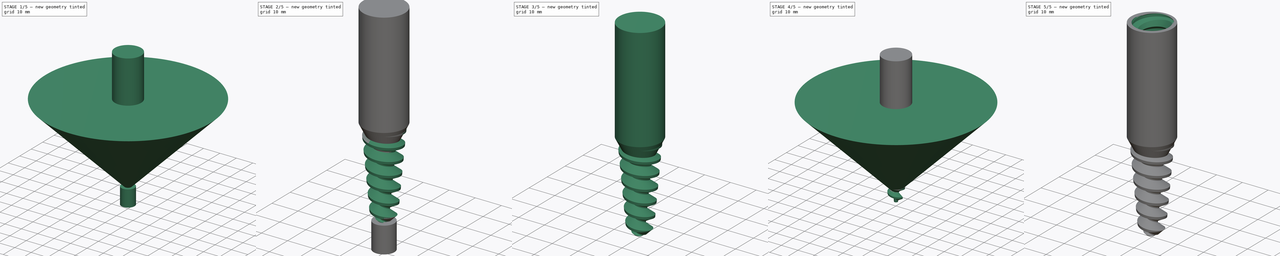
[diagram: build sequence overview — one tinted view per stage of 5, left to right]
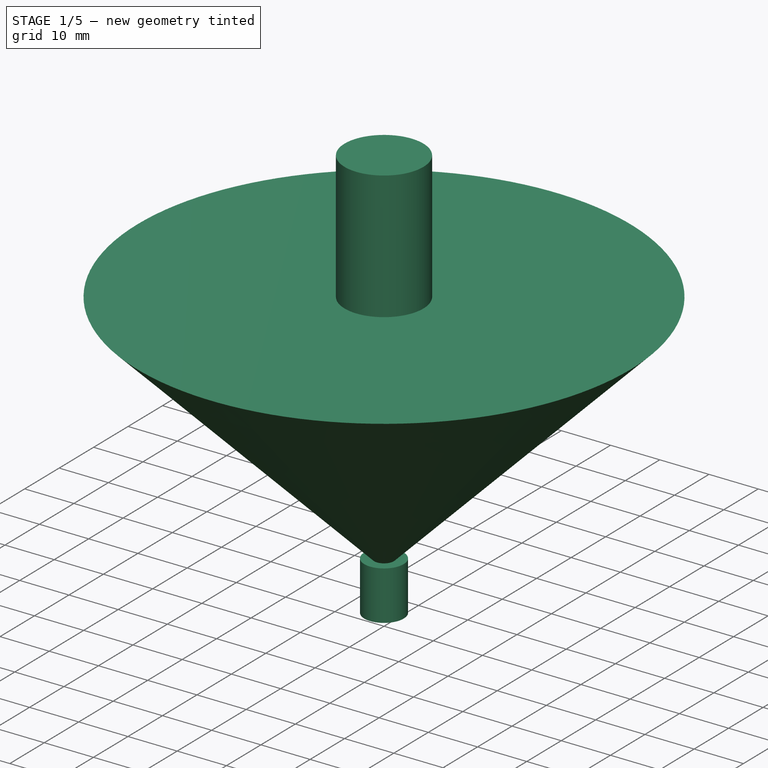
[diagram: stage 1 of 5 — iso view after this stage's code; geometry added in this stage tinted green]
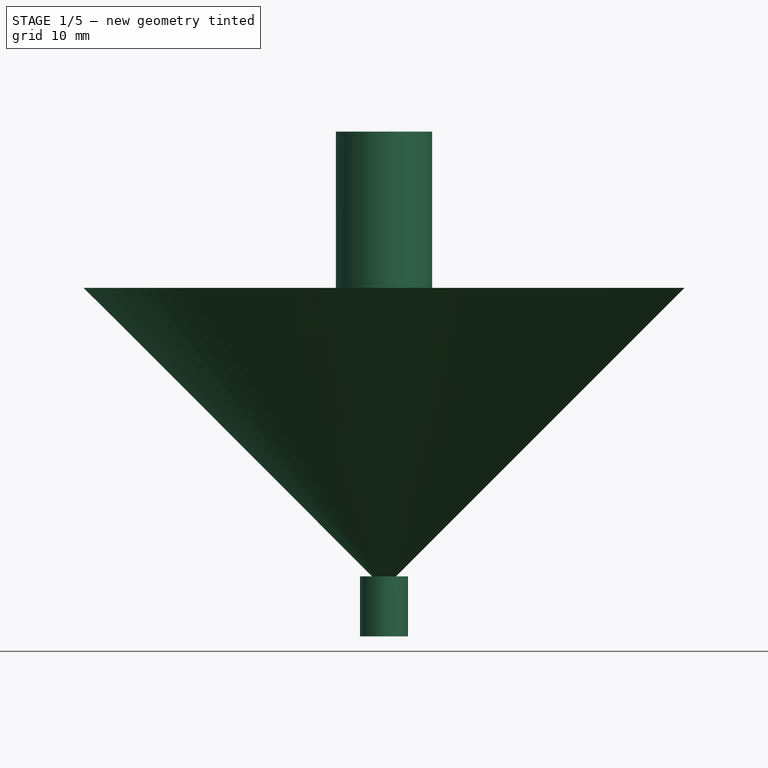
[diagram: stage 1 of 5 — front view after this stage's code; geometry added in this stage tinted green]
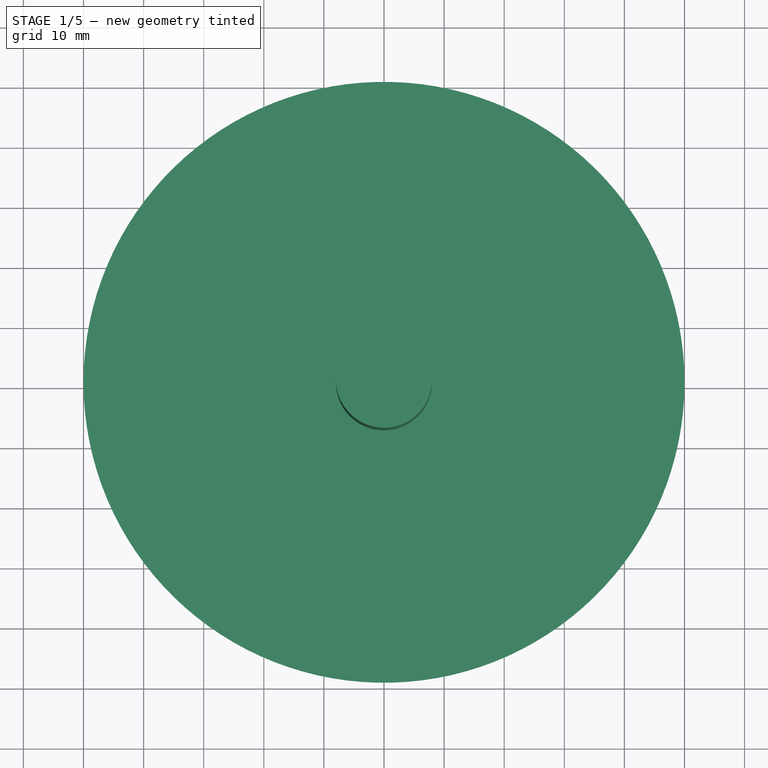
[diagram: stage 1 of 5 — top view after this stage's code; geometry added in this stage tinted green]
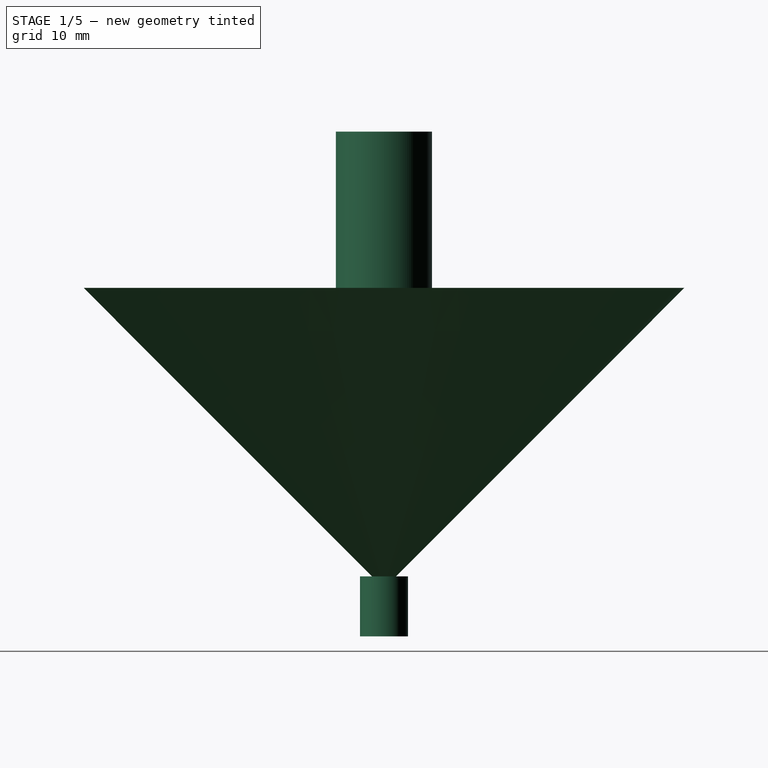
[diagram: stage 1 of 5 — right view after this stage's code; geometry added in this stage tinted green]
FCSTD DOCUMENT  (FreeCAD 0.16R6662 (Git))
Label: tapered-screw-both
License: CreativeCommons Attribution-ShareAlike
LicenseURL: http://creativecommons.org/licenses/by-sa/4.0/
objects: Part::Cone×6, Part::MultiFuse×4, Part::Cylinder×3, Part::Helix×2, Sketcher::SketchObject×2, Part::Part2DObjectPython×2, Part::Sweep×2, Part::MultiCommon×2, Part::Cut×2
note: 25 computed .brp shape members not serialized (recipe doc carries the construction recipe); baked Part::Feature solids carry a one-line shape summary decoded from their .brp

FEATURE [Part::Cone] Cone001
  Angle = 360
  Height = 50
  Placement = pos=(0,0,1) rot=(0,0,1;0rad)
  Radius1 = 0
  Radius2 = 50
FEATURE [Part::Cone] Cone002
  Angle = 360
  Height = 10
  Placement = pos=(0,0,27) rot=(0,0,1;0rad)
  Radius1 = 3
  Radius2 = 8
FEATURE [Part::Cylinder] Cylinder
  Angle = 360
  Height = 40
  Placement = pos=(0,0,37) rot=(0,0,1;0rad)
  Radius = 8
FEATURE [Part::Cylinder] Cylinder002
  Angle = 360
  Height = 10
  Placement = pos=(0,0,-7) rot=(0,0,1;0rad)
  Radius = 4
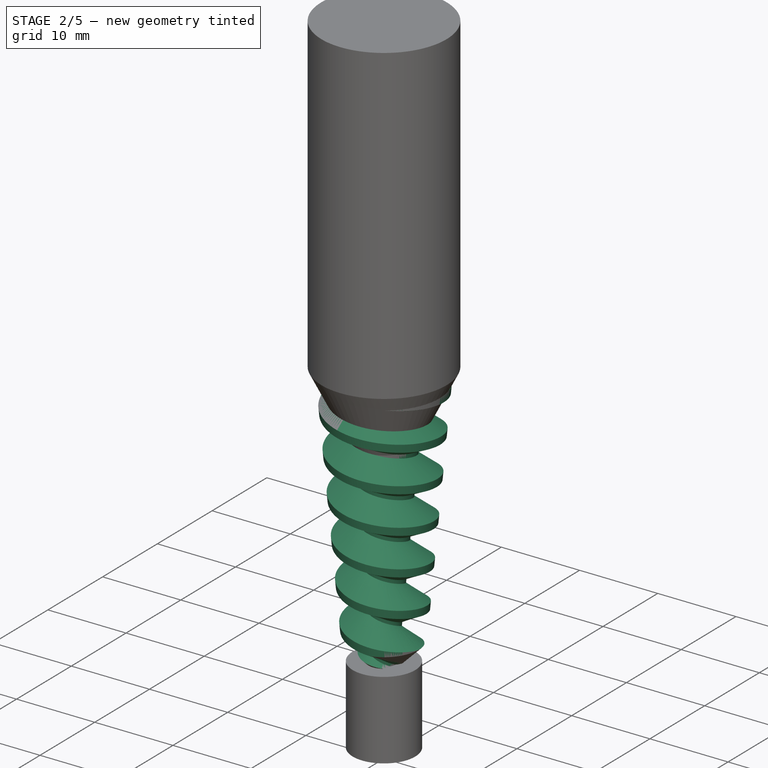
[diagram: stage 2 of 5 — iso view after this stage's code; geometry added in this stage tinted green]
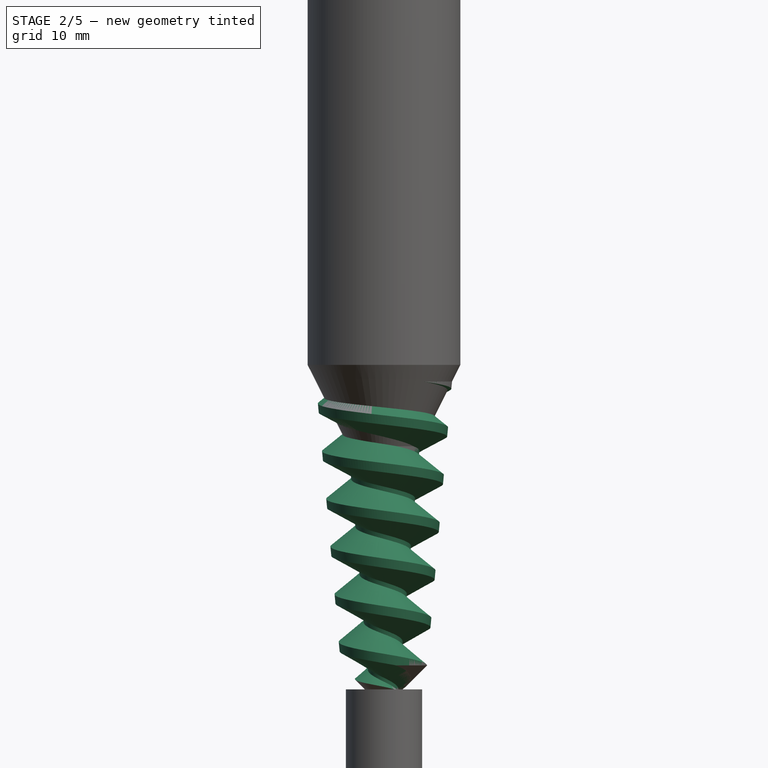
[diagram: stage 2 of 5 — front view after this stage's code; geometry added in this stage tinted green]
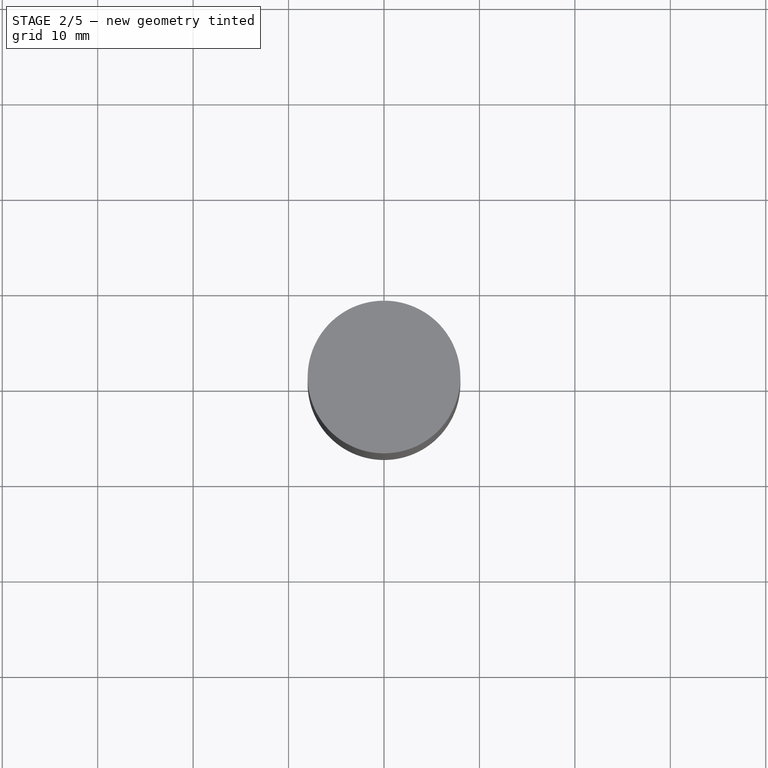
[diagram: stage 2 of 5 — top view after this stage's code; geometry added in this stage tinted green]
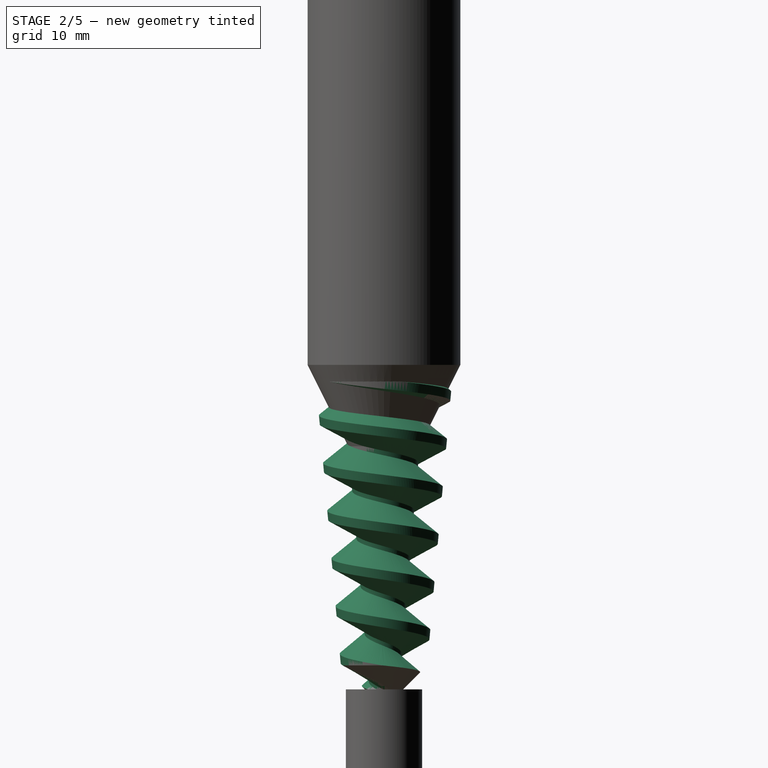
[diagram: stage 2 of 5 — right view after this stage's code; geometry added in this stage tinted green]
FEATURE [Part::Helix] Helix001
  Angle = 5
  Height = 40
  LocalCoord = 1
  Pitch = 5
  Radius = 2.6
  Style = 1
FEATURE [Sketcher::SketchObject] Sketch
  Placement = pos=(0,0,10) rot=(1,0,0;1.5708rad)
  sketch-geometry (4):
    g0: LineSegment StartX=-12 StartY=0 StartZ=0 EndX=-9 EndY=-2 EndZ=0
    g1: LineSegment StartX=-9 StartY=-2 StartZ=0 EndX=-9 EndY=3 EndZ=0
    g2: LineSegment StartX=-9 StartY=3 StartZ=0 EndX=-12 EndY=1 EndZ=0
    g3: LineSegment StartX=-12 StartY=1 StartZ=0 EndX=-12 EndY=0 EndZ=0
  constraints (7):
    c: PointOnObject(g0,g-1)
    c: Coincident(g0,g1)
    c: Vertical(g1)
    c: Coincident(g2,g3)
    c: Coincident(g3,g0)
    c: Vertical(g3)
    c: Coincident(g1,g2)
FEATURE [Part::Part2DObjectPython] DWire  # Draft 2D object (typed FeaturePython)
  Base = -> Sketch
  ChamferSize = 0
  Closed = true
  End = (0.832728,0,-2.23493)
  FilletRadius = 0
  Length = 18.5084
  MakeFace = true
  Placement = pos=(-7,0,11.5) rot=(0,1,0;3.22886rad)
  Points = (7) [(-9,2.07761e-16,10.9357),(-11,0,10),(-9,-2.22045e-16,9),(-9,-6.66134e-16,7),(-7,-6.66134e-16,7),(-7,6.66134e-16,13),(-9,6.66134e-16,13)]
  Start = (1.01265,0,-0.178461)
  Subdivisions = 0
FEATURE [Part::Sweep] Sweep
  Frenet = true
  Sections = -> [DWire]
  Solid = true
  Spine = -> Helix001
  Transition = 1
FEATURE [Part::Cone] Cone
  Angle = 360
  Height = 46
  Placement = pos=(0,0,-3) rot=(0,0,1;0rad)
  Radius1 = 1
  Radius2 = 5
FEATURE [Part::MultiFuse] Fusion
  Shapes = -> [Sweep,Cone]
FEATURE [Part::MultiCommon] Common
  Shapes = -> [Fusion,Cone001]
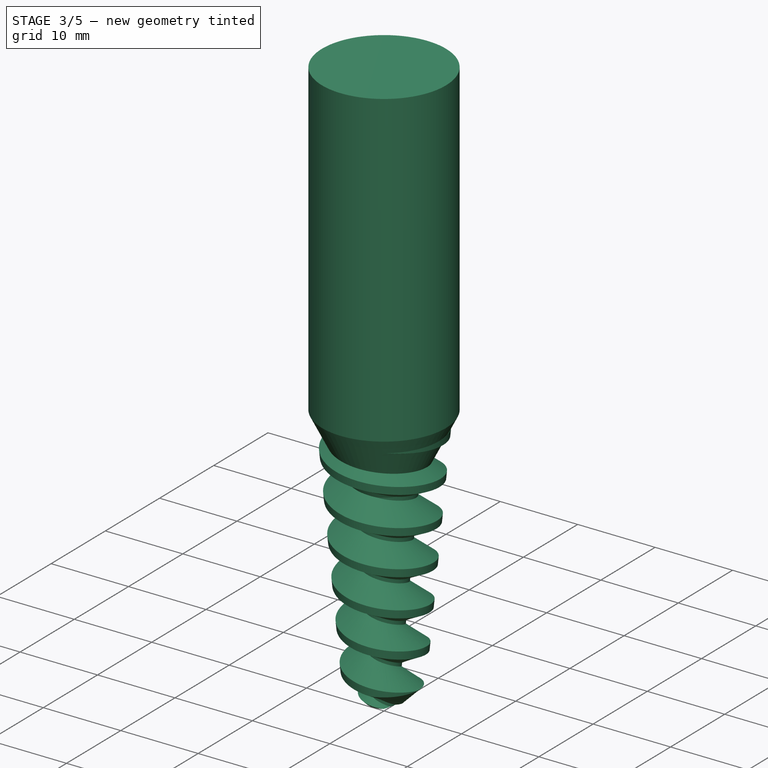
[diagram: stage 3 of 5 — iso view after this stage's code; geometry added in this stage tinted green]
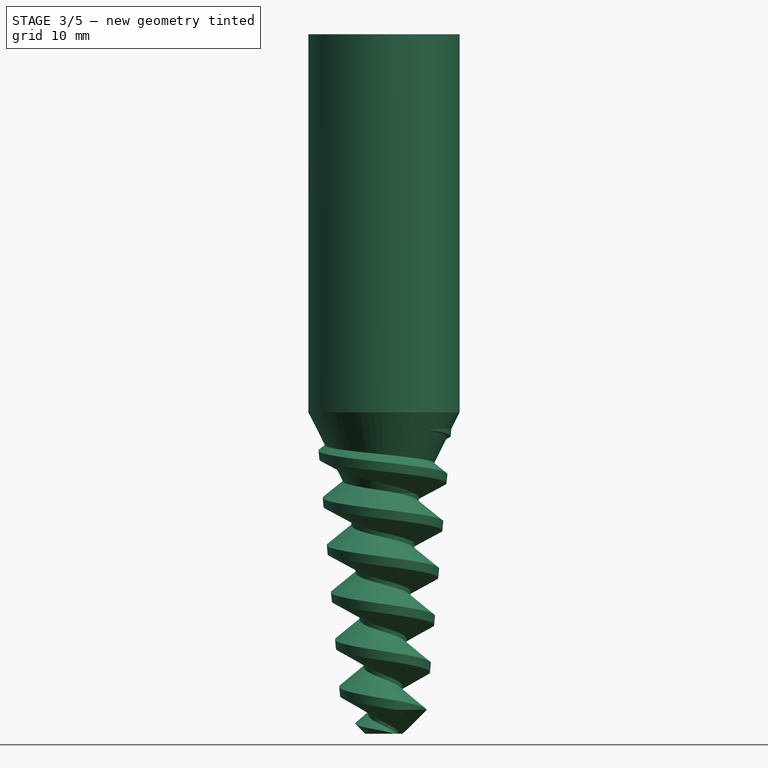
[diagram: stage 3 of 5 — front view after this stage's code; geometry added in this stage tinted green]
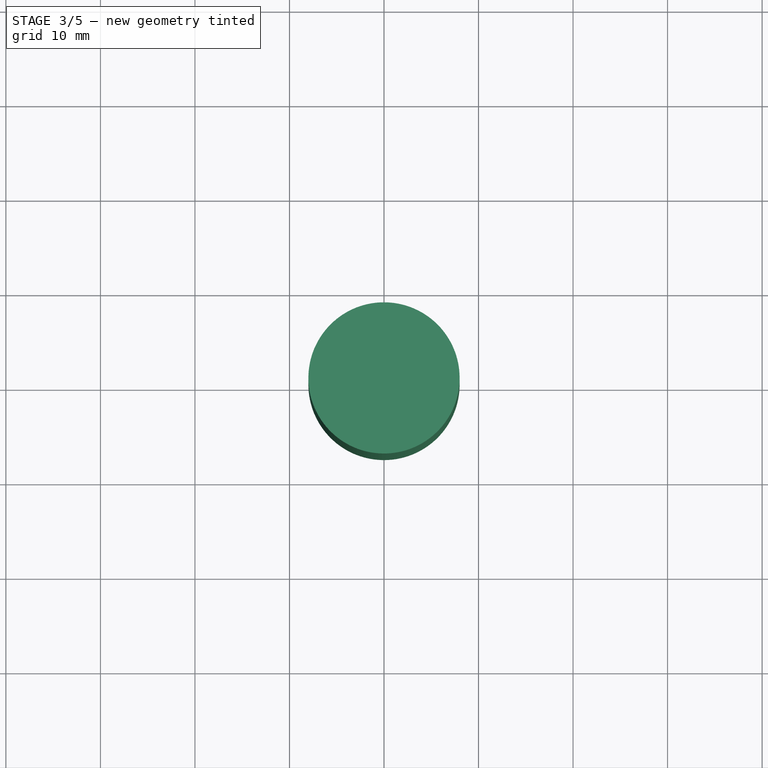
[diagram: stage 3 of 5 — top view after this stage's code; geometry added in this stage tinted green]
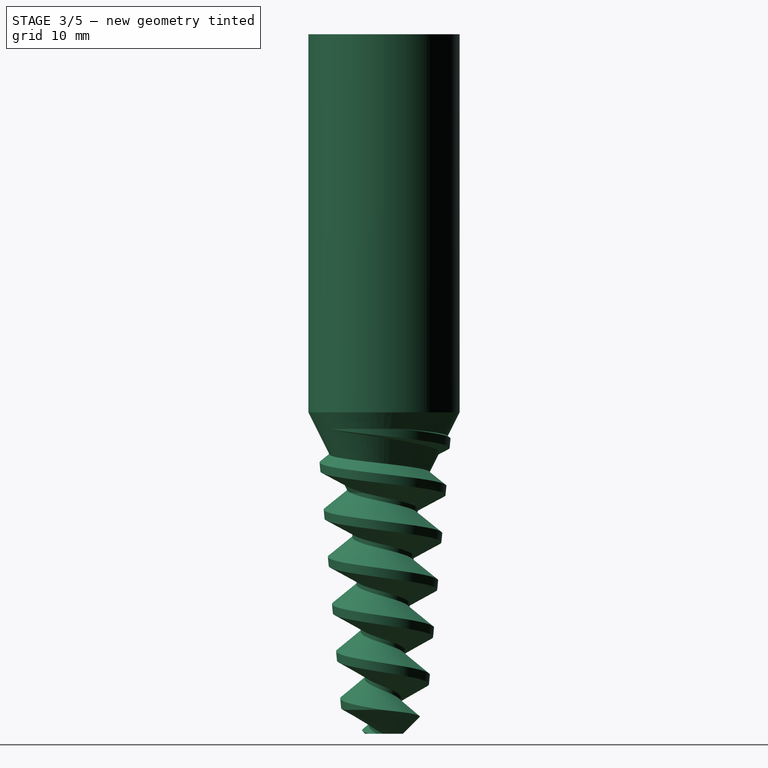
[diagram: stage 3 of 5 — right view after this stage's code; geometry added in this stage tinted green]
FEATURE [Part::MultiFuse] Fusion001  label="tapered-screw"
  Shapes = -> [Cylinder,Cone002,Common]
FEATURE [Part::Cylinder] Cylinder001
  Angle = 360
  Height = 40
  Placement = pos=(0,0,37) rot=(0,0,1;0rad)
  Radius = 8
FEATURE [Part::Cut] Cut  label="tapered-screw-cut"
  Base = -> Fusion001
  Tool = -> Cylinder002
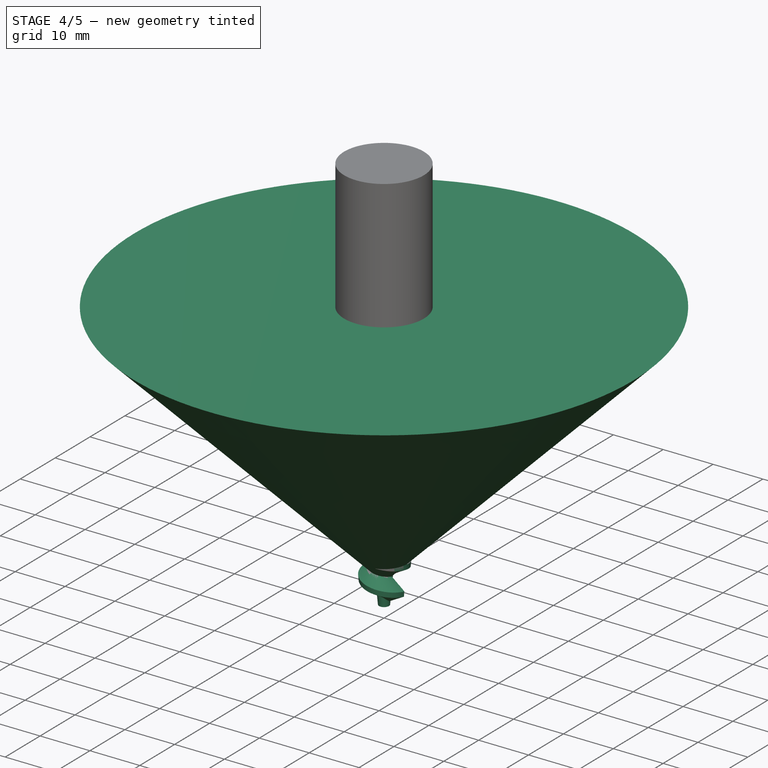
[diagram: stage 4 of 5 — iso view after this stage's code; geometry added in this stage tinted green]
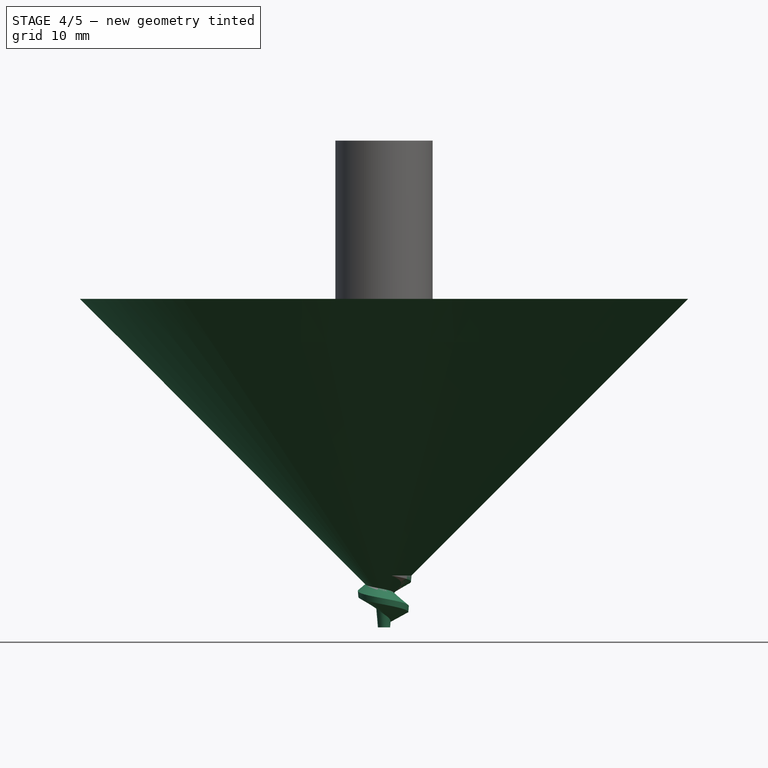
[diagram: stage 4 of 5 — front view after this stage's code; geometry added in this stage tinted green]
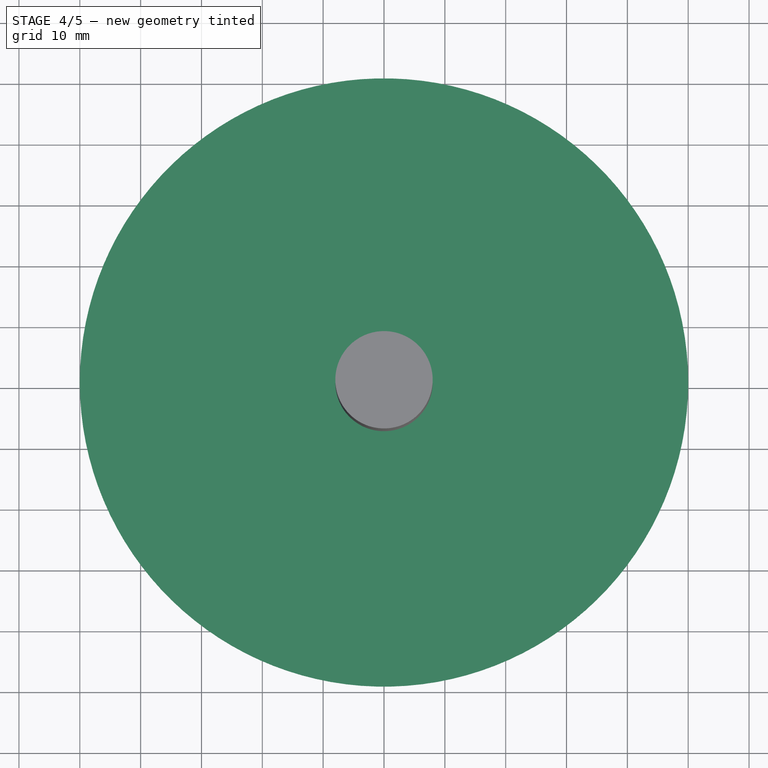
[diagram: stage 4 of 5 — top view after this stage's code; geometry added in this stage tinted green]
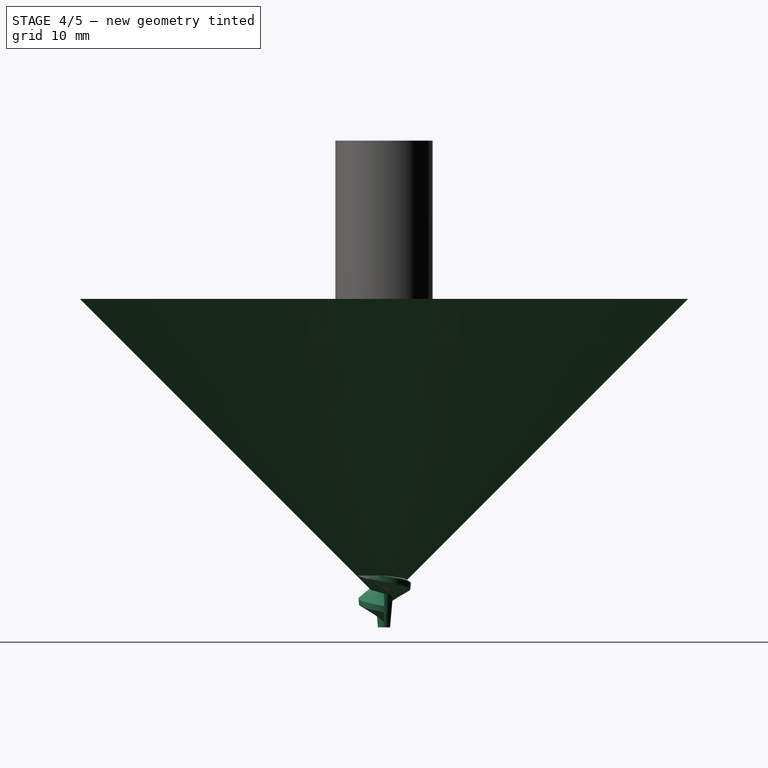
[diagram: stage 4 of 5 — right view after this stage's code; geometry added in this stage tinted green]
FEATURE [Part::Helix] Helix002
  Angle = 5
  Height = 40
  LocalCoord = 1
  Pitch = 5
  Radius = 2.6
  Style = 1
FEATURE [Sketcher::SketchObject] Sketch001
  Placement = pos=(0,0,10) rot=(1,0,0;1.5708rad)
  sketch-geometry (4):
    g0: LineSegment StartX=-12 StartY=0 StartZ=0 EndX=-9 EndY=-2 EndZ=0
    g1: LineSegment StartX=-9 StartY=-2 StartZ=0 EndX=-9 EndY=3 EndZ=0
    g2: LineSegment StartX=-9 StartY=3 StartZ=0 EndX=-12 EndY=1 EndZ=0
    g3: LineSegment StartX=-12 StartY=1 StartZ=0 EndX=-12 EndY=0 EndZ=0
  constraints (7):
    c: PointOnObject(g0,g-1)
    c: Coincident(g0,g1)
    c: Vertical(g1)
    c: Coincident(g2,g3)
    c: Coincident(g3,g0)
    c: Vertical(g3)
    c: Coincident(g1,g2)
FEATURE [Part::Part2DObjectPython] DWire001  # Draft 2D object (typed FeaturePython)
  Base = -> Sketch001
  ChamferSize = 0
  Closed = true
  End = (0.832728,0,-2.23493)
  FilletRadius = 0
  Length = 18.5084
  MakeFace = true
  Placement = pos=(-7,0,11.5) rot=(0,1,0;3.22886rad)
  Points = (7) [(-9,2.07761e-16,10.9357),(-11,0,10),(-9,-2.22045e-16,9),(-9,-6.66134e-16,7),(-7,-6.66134e-16,7),(-7,6.66134e-16,13),(-9,6.66134e-16,13)]
  Start = (1.01265,0,-0.178461)
  Subdivisions = 0
FEATURE [Part::Sweep] Sweep001
  Frenet = true
  Sections = -> [DWire001]
  Solid = true
  Spine = -> Helix002
  Transition = 1
FEATURE [Part::Cone] Cone003
  Angle = 360
  Height = 46
  Placement = pos=(0,0,-3) rot=(0,0,1;0rad)
  Radius1 = 1
  Radius2 = 5
FEATURE [Part::Cone] Cone004
  Angle = 360
  Height = 50
  Placement = pos=(0,0,1) rot=(0,0,1;0rad)
  Radius1 = 0
  Radius2 = 50
FEATURE [Part::Cone] Cone005
  Angle = 360
  Height = 10
  Placement = pos=(0,0,27) rot=(0,0,1;0rad)
  Radius1 = 3
  Radius2 = 8
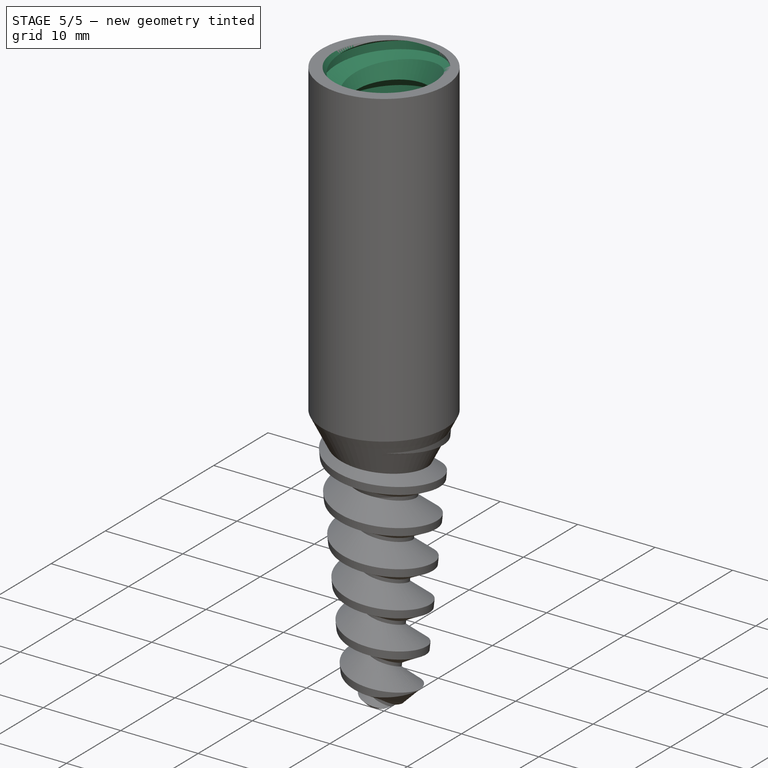
[diagram: stage 5 of 5 — iso view after this stage's code; geometry added in this stage tinted green]
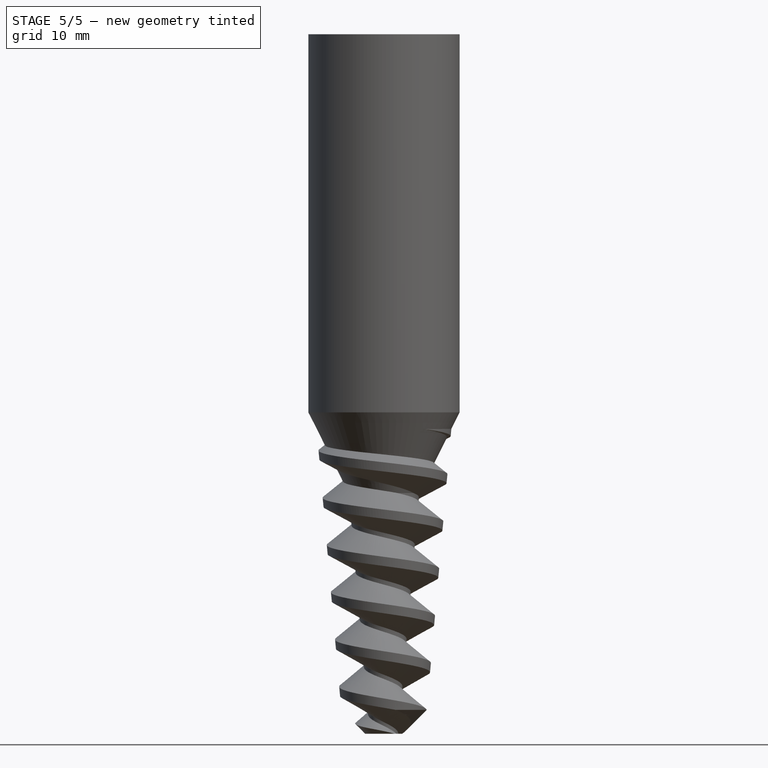
[diagram: stage 5 of 5 — front view after this stage's code; geometry added in this stage tinted green]
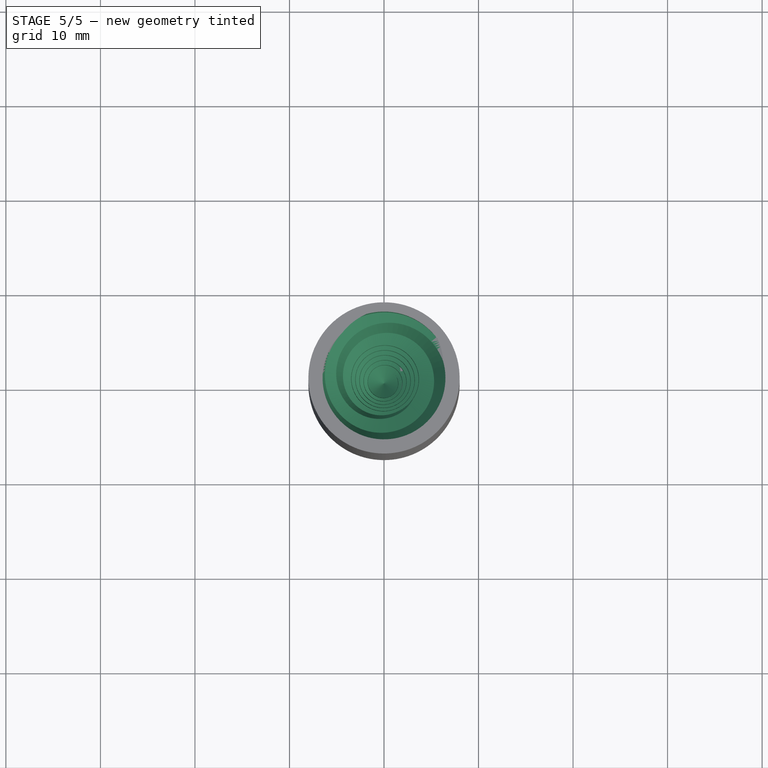
[diagram: stage 5 of 5 — top view after this stage's code; geometry added in this stage tinted green]
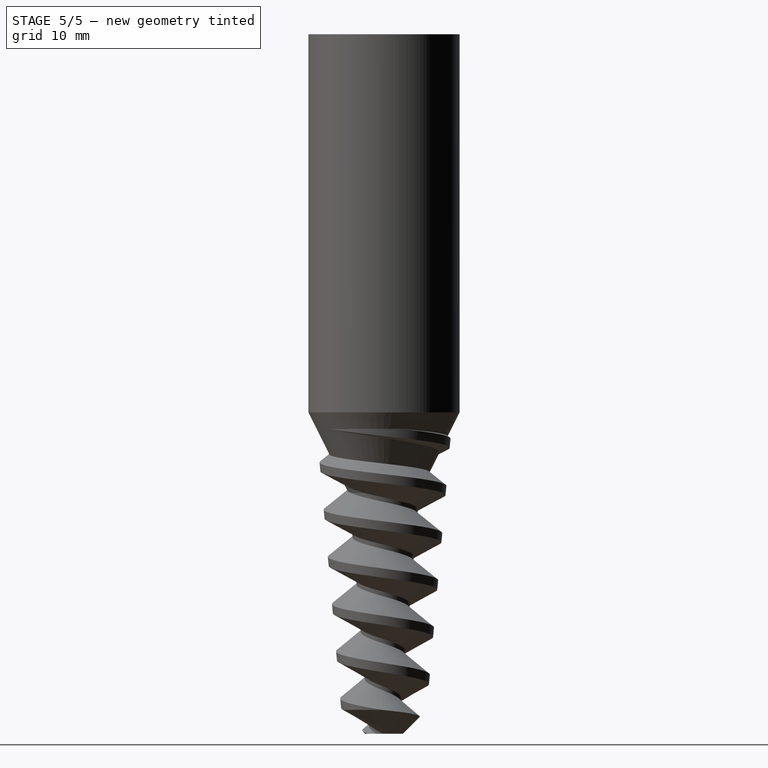
[diagram: stage 5 of 5 — right view after this stage's code; geometry added in this stage tinted green]
FEATURE [Part::MultiFuse] Fusion002
  Shapes = -> [Sweep001,Cone003]
FEATURE [Part::MultiCommon] Common001
  Shapes = -> [Fusion002,Cone004]
FEATURE [Part::MultiFuse] Fusion003  label="tapered-screw001"
  Placement = pos=(0,0,43) rot=(0,0,1;0rad)
  Shapes = -> [Cylinder001,Cone005,Common001]
FEATURE [Part::Cut] Cut001  label="tapered-screw-both"
  Base = -> Cut
  Tool = -> Fusion003
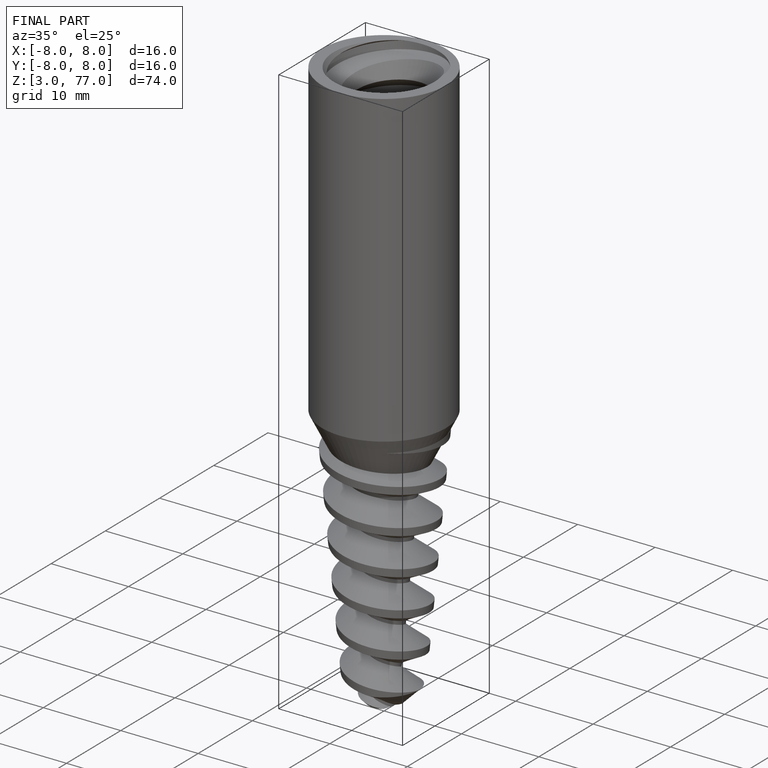
[diagram: finished part — iso view with bounding-box wireframe]
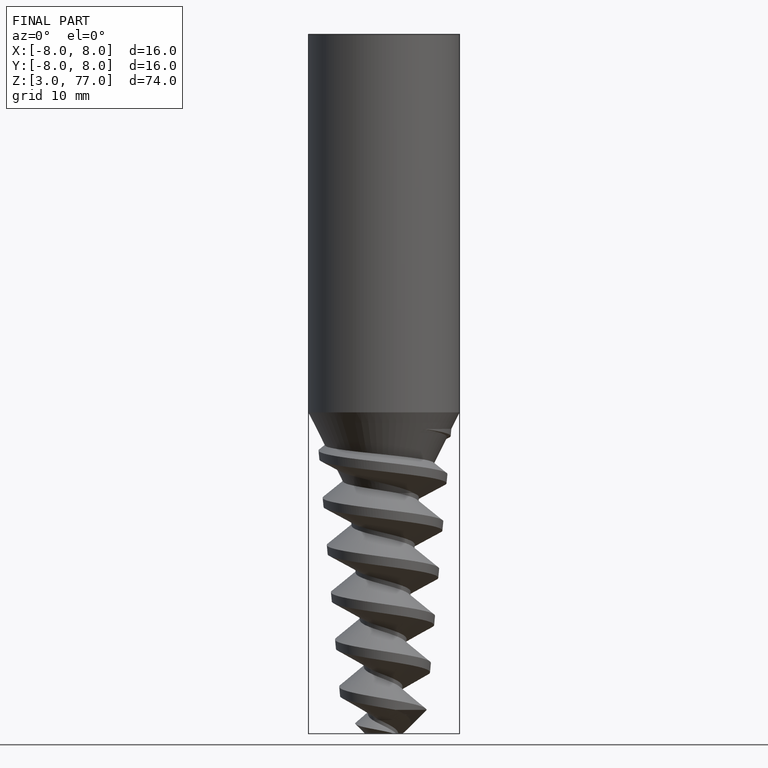
[diagram: finished part — front view with bounding-box wireframe]
